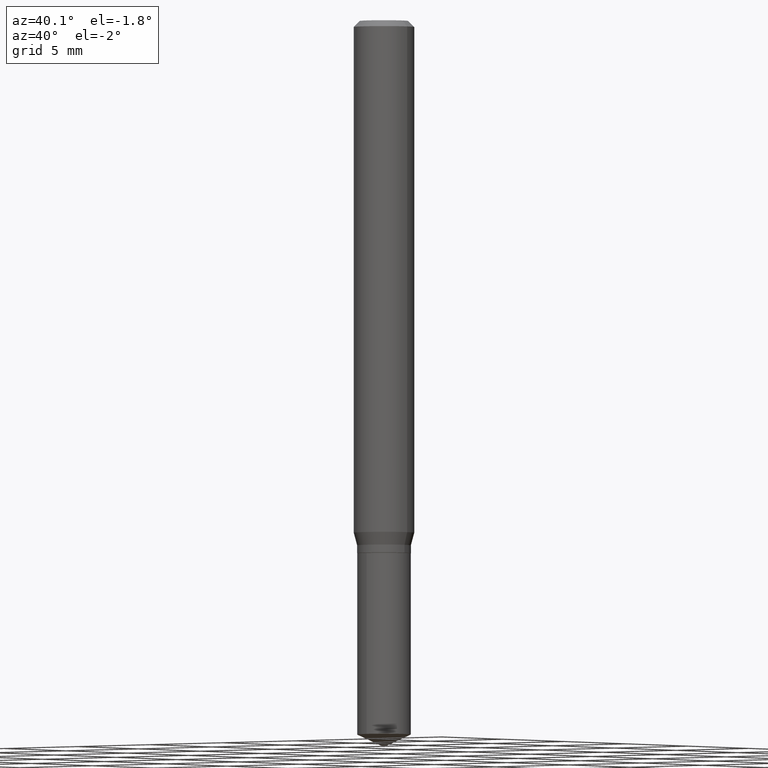
[diagram: clean part render]
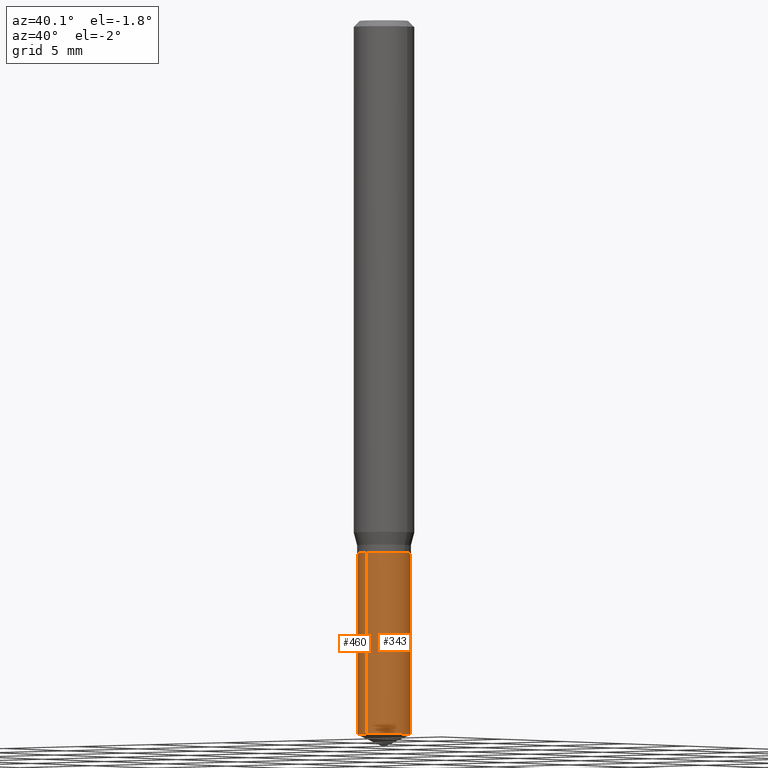
[diagram: same view with one multi-face feature highlighted, each face labeled with its STEP entity id]
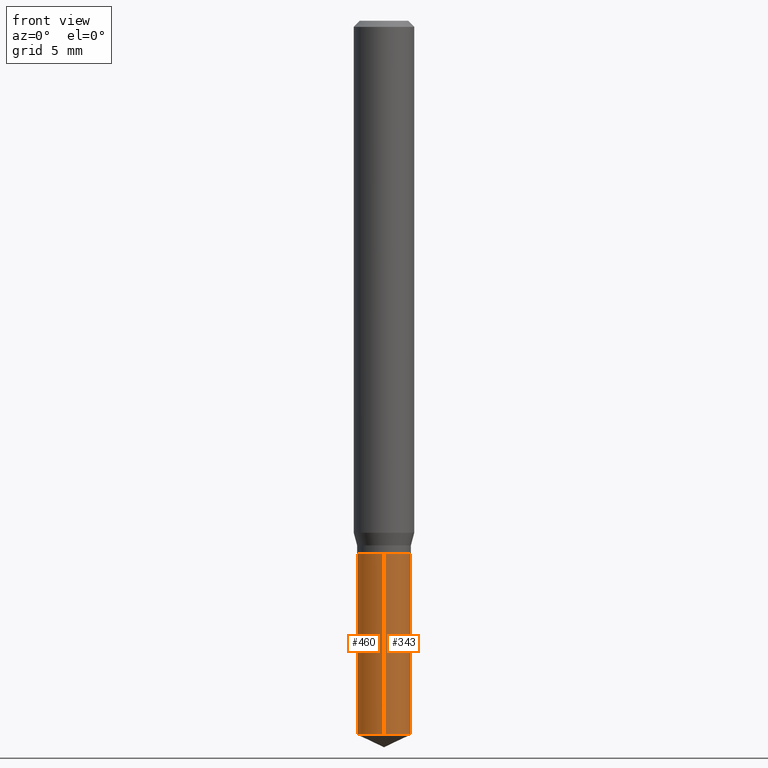
[diagram: same view with one multi-face feature highlighted, each face labeled with its STEP entity id]
A machine part, auxiliary view. The highlighted faces form ONE feature: a constant-radius fillet chain: 2 tangent blend faces with common blend radius 1.4097 mm. The faces share edges in the B-rep.
A second angle (front view) of the same feature is appended — it is thin or edge-on in the first view.
Their STEP definitions:
[1] entity #343 (Cylinder):
#6 = AXIS2_PLACEMENT_3D ( 'NONE', #24, #292, #475 ) ;
#8 = EDGE_LOOP ( 'NONE', ( #112, #46, #123, #385 ) ) ;
#13 = VERTEX_POINT ( 'NONE', #118 ) ;
#18 = DIRECTION ( 'NONE',  ( -2.445399690415121530E-29, 3.491580316559632610E-15, 1.000000000000000000 ) ) ;
#24 = CARTESIAN_POINT ( 'NONE',  ( 2.690015686803650369E-29, -3.840629472727460101E-15, -1.100000000000000089 ) ) ;
#28 = VECTOR ( 'NONE', #284, 39.37007874015748143 ) ;
#33 = FACE_OUTER_BOUND ( 'NONE', #8, .T. ) ;
#46 = ORIENTED_EDGE ( 'NONE', *, *, #113, .T. ) ;
#53 = CARTESIAN_POINT ( 'NONE',  ( 3.943512183468824296E-16, 0.05549999999999616351, -1.100000000000000089 ) ) ;
#66 = DIRECTION ( 'NONE',  ( -2.445399690415121530E-29, 3.491580316559632610E-15, 1.000000000000000000 ) ) ;
#70 = VERTEX_POINT ( 'NONE', #468 ) ;
#91 = CARTESIAN_POINT ( 'NONE',  ( -3.875544286115608747E-16, -0.05550000000000384487, -1.099999999999999867 ) ) ;
#104 = CIRCLE ( 'NONE', #398, 0.05550000000000000072 ) ;
#112 = ORIENTED_EDGE ( 'NONE', *, *, #223, .T. ) ;
#113 = EDGE_CURVE ( 'NONE', #13, #466, #139, .T. ) ;
#118 = CARTESIAN_POINT ( 'NONE',  ( 3.943512183468915508E-16, 0.05549999999999484512, -1.474119924972397966 ) ) ;
#120 = VERTEX_POINT ( 'NONE', #282 ) ;
#123 = ORIENTED_EDGE ( 'NONE', *, *, #180, .F. ) ;
#139 = LINE ( 'NONE', #53, #28 ) ;
#148 = EDGE_CURVE ( 'NONE', #70, #120, #253, .T. ) ;
#151 = CYLINDRICAL_SURFACE ( 'NONE', #358, 0.05550000000000000072 ) ;
#154 = CARTESIAN_POINT ( 'NONE',  ( 3.943512183468916494E-16, 0.05549999999999616351, -1.100000000000000089 ) ) ;
#180 = EDGE_CURVE ( 'NONE', #120, #466, #232, .T. ) ;
#216 = DIRECTION ( 'NONE',  ( -6.982962677686266711E-15, -1.000000000000000000, 4.922248637232906401E-15 ) ) ;
#220 = VECTOR ( 'NONE', #249, 39.37007874015748143 ) ;
#223 = EDGE_CURVE ( 'NONE', #70, #13, #104, .T. ) ;
#232 = CIRCLE ( 'NONE', #6, 0.05550000000000000072 ) ;
#249 = DIRECTION ( 'NONE',  ( -2.445399690415121810E-29, 3.491580316559632610E-15, 1.000000000000000000 ) ) ;
#253 = LINE ( 'NONE', #91, #220 ) ;
#282 = CARTESIAN_POINT ( 'NONE',  ( -3.875544286115608747E-16, -0.05550000000000384487, -1.099999999999999867 ) ) ;
#284 = DIRECTION ( 'NONE',  ( -2.445399690415121810E-29, 3.491580316559632610E-15, 1.000000000000000000 ) ) ;
#292 = DIRECTION ( 'NONE',  ( -2.445399690415121530E-29, 3.491580316559632610E-15, 1.000000000000000000 ) ) ;
#343 = ADVANCED_FACE ( 'NONE', ( #33 ), #151, .T. ) ;
#358 = AXIS2_PLACEMENT_3D ( 'NONE', #370, #66, #482 ) ;
#370 = CARTESIAN_POINT ( 'NONE',  ( 2.690015686803650369E-29, -3.840629472727460101E-15, -1.100000000000000089 ) ) ;
#385 = ORIENTED_EDGE ( 'NONE', *, *, #148, .F. ) ;
#398 = AXIS2_PLACEMENT_3D ( 'NONE', #401, #18, #216 ) ;
#401 = CARTESIAN_POINT ( 'NONE',  ( 3.604888435509279625E-29, -5.146899238793850819E-15, -1.474119924972397522 ) ) ;
#466 = VERTEX_POINT ( 'NONE', #154 ) ;
#468 = CARTESIAN_POINT ( 'NONE',  ( -3.875544286115517535E-16, -0.05550000000000514938, -1.474119924972397300 ) ) ;
#475 = DIRECTION ( 'NONE',  ( -6.982962677686266711E-15, -1.000000000000000000, 2.461124318616453201E-15 ) ) ;
#482 = DIRECTION ( 'NONE',  ( -6.982962677686266711E-15, -1.000000000000000000, 2.461124318616453201E-15 ) ) ;
[2] entity #460 (Cylinder):
#13 = VERTEX_POINT ( 'NONE', #118 ) ;
#28 = VECTOR ( 'NONE', #284, 39.37007874015748143 ) ;
#47 = FACE_OUTER_BOUND ( 'NONE', #483, .T. ) ;
#53 = CARTESIAN_POINT ( 'NONE',  ( 3.943512183468824296E-16, 0.05549999999999616351, -1.100000000000000089 ) ) ;
#57 = CIRCLE ( 'NONE', #345, 0.05550000000000000072 ) ;
#70 = VERTEX_POINT ( 'NONE', #468 ) ;
#75 = DIRECTION ( 'NONE',  ( -2.445399690415121530E-29, 3.491580316559632610E-15, 1.000000000000000000 ) ) ;
#85 = CARTESIAN_POINT ( 'NONE',  ( 2.690015686803650369E-29, -3.840629472727460101E-15, -1.100000000000000089 ) ) ;
#91 = CARTESIAN_POINT ( 'NONE',  ( -3.875544286115608747E-16, -0.05550000000000384487, -1.099999999999999867 ) ) ;
#93 = CARTESIAN_POINT ( 'NONE',  ( 3.604888435509279625E-29, -5.146899238793850819E-15, -1.474119924972397522 ) ) ;
#113 = EDGE_CURVE ( 'NONE', #13, #466, #139, .T. ) ;
#115 = DIRECTION ( 'NONE',  ( -6.982962677686266711E-15, -1.000000000000000000, 2.461124318616453201E-15 ) ) ;
#118 = CARTESIAN_POINT ( 'NONE',  ( 3.943512183468915508E-16, 0.05549999999999484512, -1.474119924972397966 ) ) ;
#120 = VERTEX_POINT ( 'NONE', #282 ) ;
#139 = LINE ( 'NONE', #53, #28 ) ;
#148 = EDGE_CURVE ( 'NONE', #70, #120, #253, .T. ) ;
#154 = CARTESIAN_POINT ( 'NONE',  ( 3.943512183468916494E-16, 0.05549999999999616351, -1.100000000000000089 ) ) ;
#155 = ORIENTED_EDGE ( 'NONE', *, *, #299, .F. ) ;
#160 = ORIENTED_EDGE ( 'NONE', *, *, #148, .T. ) ;
#162 = DIRECTION ( 'NONE',  ( -6.982962677686266711E-15, -1.000000000000000000, 2.461124318616453201E-15 ) ) ;
#163 = AXIS2_PLACEMENT_3D ( 'NONE', #85, #75, #162 ) ;
#187 = EDGE_CURVE ( 'NONE', #13, #70, #255, .T. ) ;
#190 = ORIENTED_EDGE ( 'NONE', *, *, #113, .F. ) ;
#220 = VECTOR ( 'NONE', #249, 39.37007874015748143 ) ;
#249 = DIRECTION ( 'NONE',  ( -2.445399690415121810E-29, 3.491580316559632610E-15, 1.000000000000000000 ) ) ;
#253 = LINE ( 'NONE', #91, #220 ) ;
#255 = CIRCLE ( 'NONE', #322, 0.05550000000000000072 ) ;
#282 = CARTESIAN_POINT ( 'NONE',  ( -3.875544286115608747E-16, -0.05550000000000384487, -1.099999999999999867 ) ) ;
#284 = DIRECTION ( 'NONE',  ( -2.445399690415121810E-29, 3.491580316559632610E-15, 1.000000000000000000 ) ) ;
#293 = DIRECTION ( 'NONE',  ( -2.445399690415121530E-29, 3.491580316559632610E-15, 1.000000000000000000 ) ) ;
#299 = EDGE_CURVE ( 'NONE', #466, #120, #57, .T. ) ;
#322 = AXIS2_PLACEMENT_3D ( 'NONE', #93, #432, #324 ) ;
#324 = DIRECTION ( 'NONE',  ( -6.982962677686266711E-15, -1.000000000000000000, 4.922248637232906401E-15 ) ) ;
#345 = AXIS2_PLACEMENT_3D ( 'NONE', #484, #293, #115 ) ;
#352 = CYLINDRICAL_SURFACE ( 'NONE', #163, 0.05550000000000000072 ) ;
#432 = DIRECTION ( 'NONE',  ( -2.445399690415121530E-29, 3.491580316559632610E-15, 1.000000000000000000 ) ) ;
#442 = ORIENTED_EDGE ( 'NONE', *, *, #187, .T. ) ;
#460 = ADVANCED_FACE ( 'NONE', ( #47 ), #352, .T. ) ;
#466 = VERTEX_POINT ( 'NONE', #154 ) ;
#468 = CARTESIAN_POINT ( 'NONE',  ( -3.875544286115517535E-16, -0.05550000000000514938, -1.474119924972397300 ) ) ;
#483 = EDGE_LOOP ( 'NONE', ( #190, #442, #160, #155 ) ) ;
#484 = CARTESIAN_POINT ( 'NONE',  ( 2.690015686803650369E-29, -3.840629472727460101E-15, -1.100000000000000089 ) ) ;